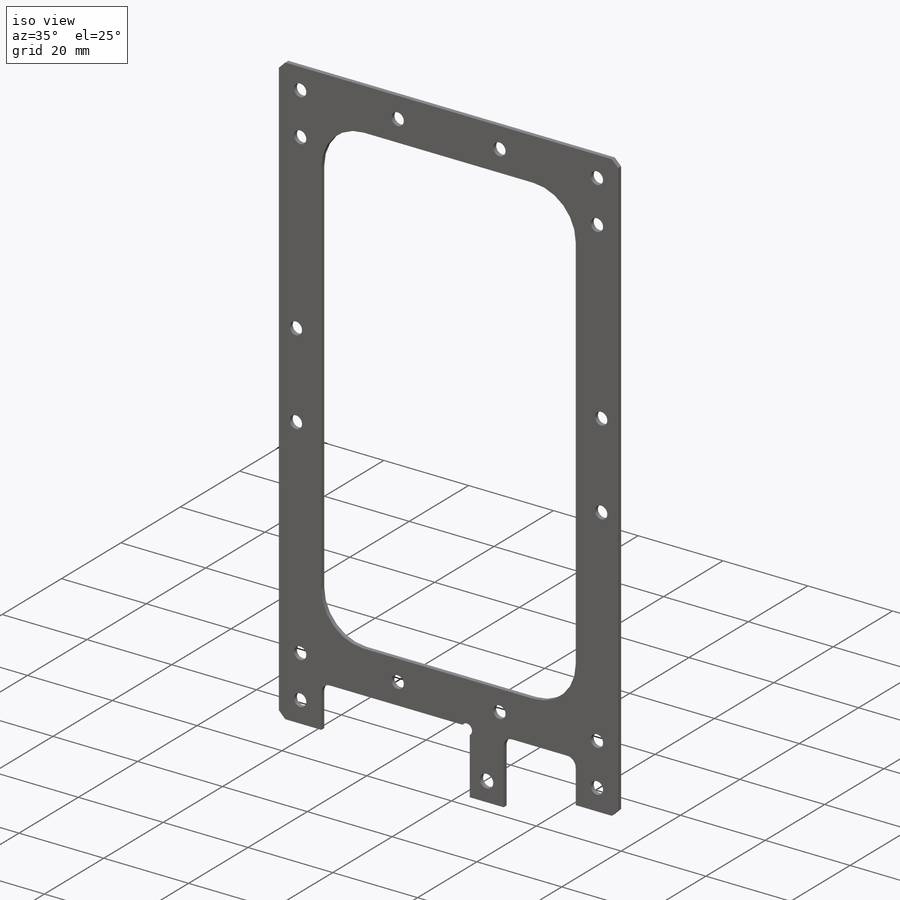
[diagram: iso view]
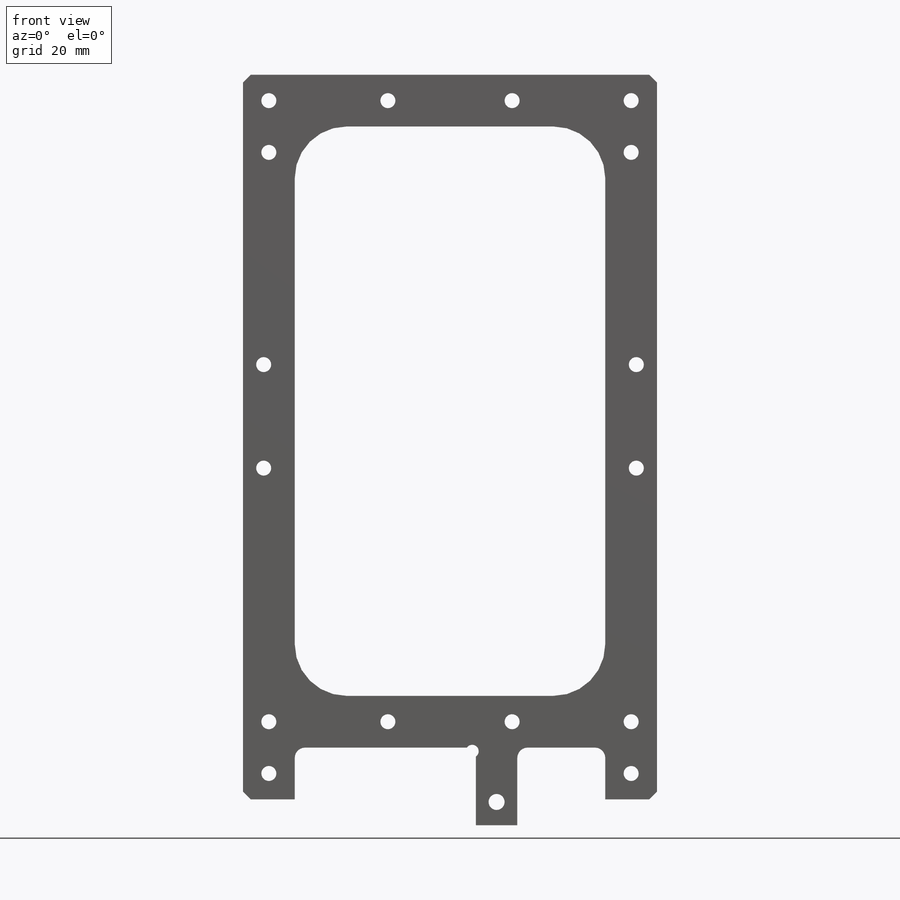
[diagram: front view]
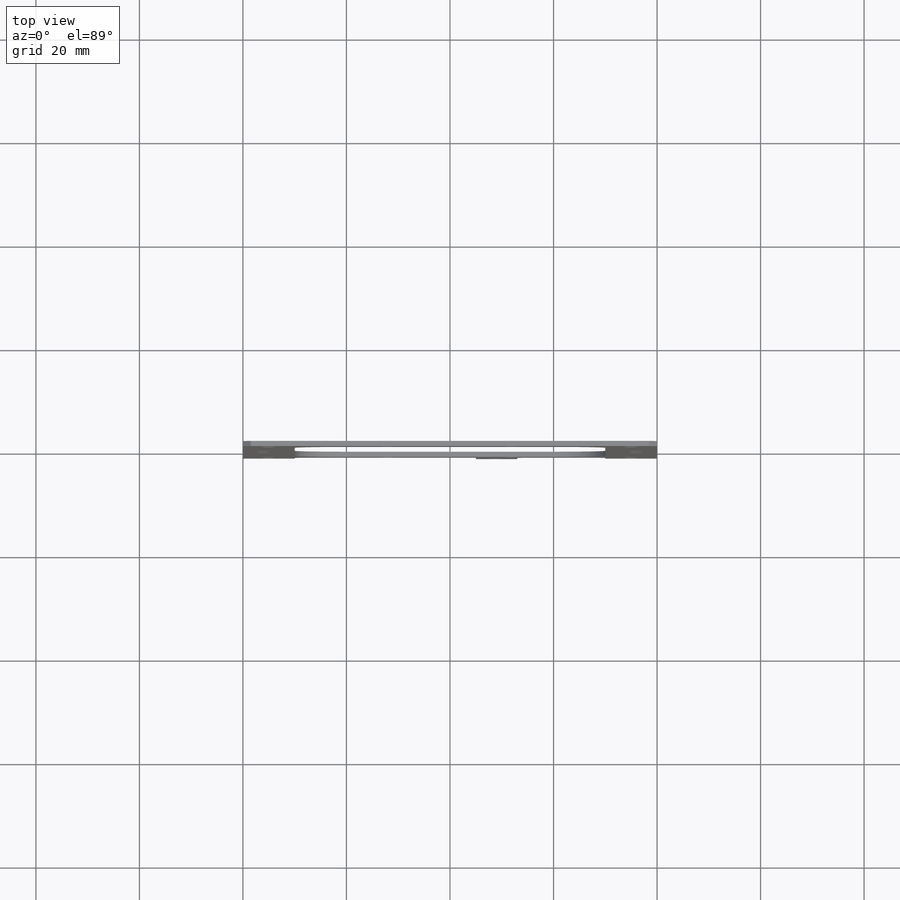
[diagram: top view]
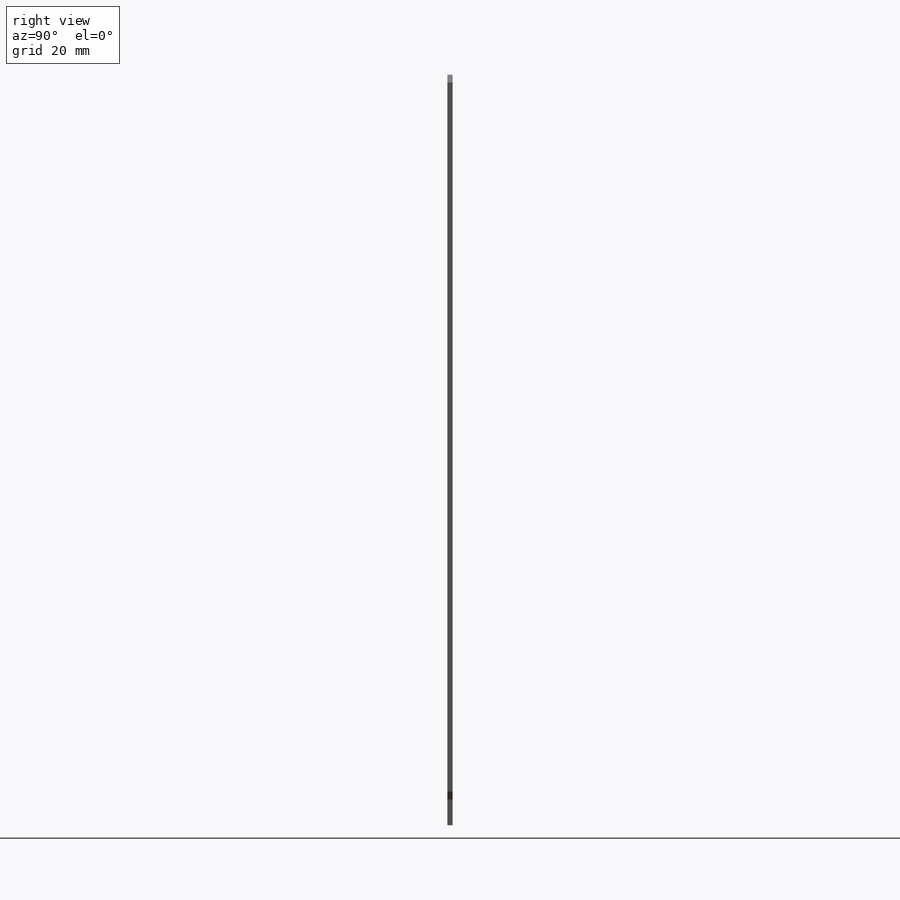
[diagram: right view]
SOLIDWORKS PART (.sldprt)
format: sldprt  version: not decoded by parser v0  size: 419,328 bytes
history: native  units: mm
features: sketch x8, extrude x2, cut_extrude x2, fillet x2, hole x2, material x1, chamfer x1, mirror x1 (+12 scaffold rows collapsed)
feature tree (31):
  scaffold x12  (default folders/planes/origin — collapsed)
  material  "Hexcel AS4C (3000 Filaments)"
  sketch  "Sketch87"  dims[D1=80.0mm D2=10.0mm D3=10.0mm D4=70.0mm D5=140.0mm]
  extrude  "Boss-Extrude12"  Depth=1mm
  sketch  "Sketch88"  dims[D1=10.0mm D2=10.0mm D3=10.0mm]
  cut_extrude  "Cut-Extrude1"  Depth=1mm
  fillet  "Fillet1"  Radius=10mm
  hole  "M2.5 Clearance Hole1"  Diameter=2.9mm Depth=11.5mm
  sketch  "Sketch90"  dims[D1=23.0mm D2=10.0mm]
  sketch  "Sketch89"  dims[hole-wizard template sketch: 47 standard entries collapsed; hole parameters kept: c15.Hole Depth=11.5mm c15.D3=~14.816244mm c15.Drill Angle=180.0deg]
  sketch  "Sketch91"  dims[c1.D4=3.1mm c1.D5=2.9mm c1.D6=2.9mm c1.D1=27.0mm c1.D2=8.0mm c1.D3=5.0mm c2.D5=31.0mm c2.D6=0.5mm]
  extrude  "Boss-Extrude13"  [1 undecoded]
  fillet  "Fillet2"  Radius=2mm
  chamfer  "Chamfer1"  Distance=1.5mm Angle=45deg
  sketch  "Sketch93"  dims[D1=2.5mm D2=1.0mm]
  cut_extrude  "Cut-Extrude2"  Depth=10mm
  hole  "M2.5 Clearance Hole2"  Diameter=2.9mm Depth=30mm
  sketch  "Sketch95"  dims[D1=4.0mm D2=56.0mm D3=76.0mm]
  sketch  "Sketch94"  dims[hole-wizard template sketch: 47 standard entries collapsed; hole parameters kept: c15.Hole Depth=30.0mm c15.D3=~14.816244mm c15.Drill Angle=180.0deg]
  mirror  "Mirror1"
decode coverage: 16 of 18 modeling features carry decoded parameters
note: ~ marks probable driven/reference dimensions
note: 1 parameter value undecoded
note: suppression state not decoded; provenance and decode notes live in map.json
